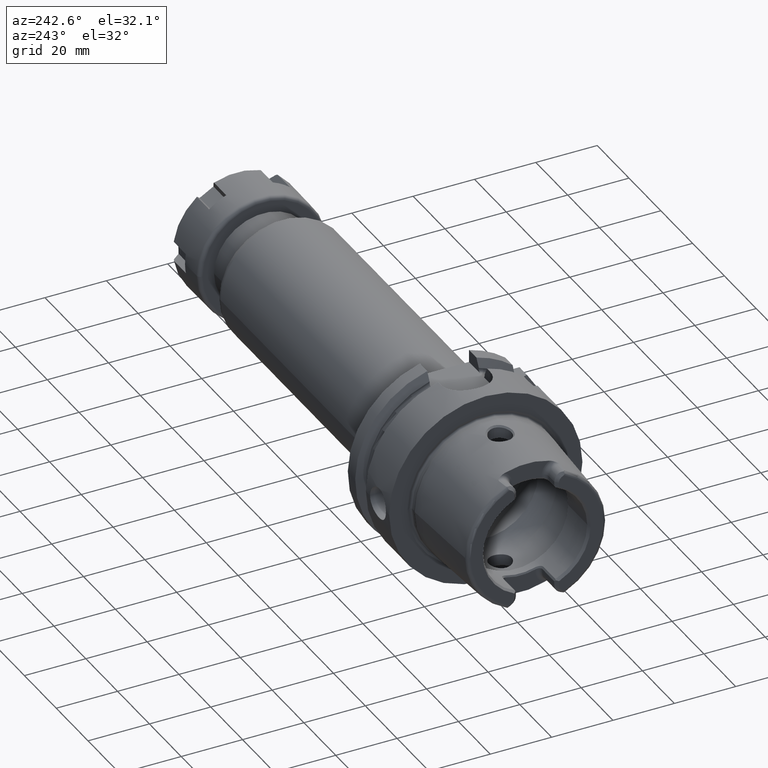
[diagram: clean part render]
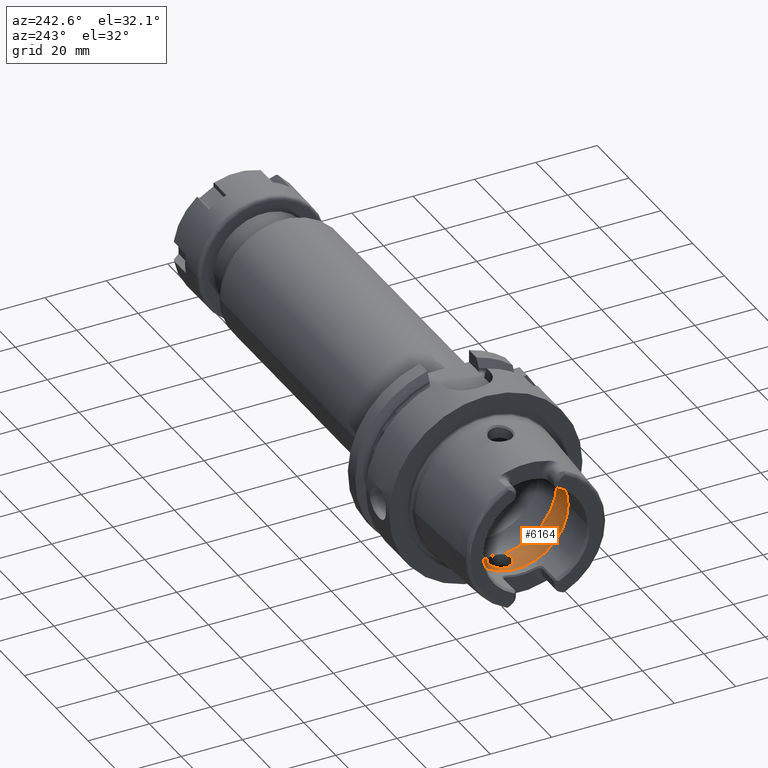
[diagram: same view with one face highlighted and labeled with its STEP entity id]
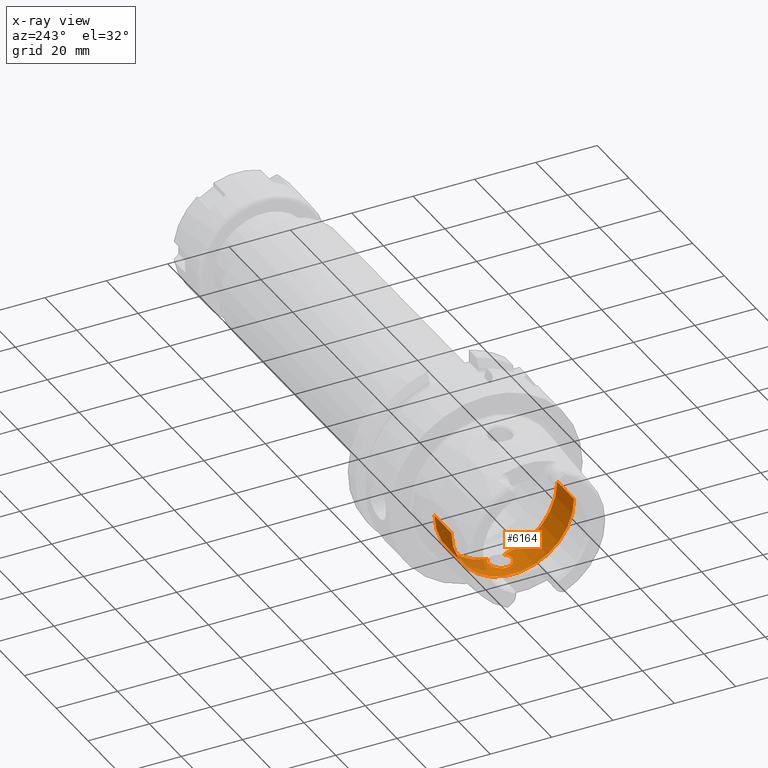
[diagram: x-ray of the same camera — body ghosted, the highlighted face saturated]
A machine part, auxiliary view. The second image highlights one B-rep face of the part: STEP entity #6164.
The next image is the same camera in x-ray: the body ghosted, the highlighted face saturated — about 7% of this face is hidden behind the body in this view.
In plain terms, the highlighted cylindrical surface (partial cylindrical patch) has radius 20 mm, axis along (1, 0, 0).
Its self-contained STEP definition (entity closure, byte-faithful):
#2400=CARTESIAN_POINT('',(-1.275E1,0.E0,-2.E1));
#2401=CARTESIAN_POINT('',(-1.275E1,1.970797777845E-1,-2.E1));
#2402=CARTESIAN_POINT('',(-1.271933909344E1,5.855820587090E-1,
-1.999421722836E1));
#2403=CARTESIAN_POINT('',(-1.258308604776E1,1.156988201512E0,
-1.996912456378E1));
#2404=CARTESIAN_POINT('',(-1.236036877994E1,1.698340885752E0,
-1.993006069771E1));
#2405=CARTESIAN_POINT('',(-1.205588954782E1,2.199795991820E0,
-1.988058916012E1));
#2406=CARTESIAN_POINT('',(-1.167538777807E1,2.649620270025E0,
-1.982521080355E1));
#2407=CARTESIAN_POINT('',(-1.122923157921E1,3.034483606922E0,
-1.976949737947E1));
#2408=CARTESIAN_POINT('',(-1.073042246945E1,3.344039011522E0,
-1.971907966661E1));
#2409=CARTESIAN_POINT('',(-1.018735452757E1,3.573605383178E0,
-1.967844161215E1));
#2410=CARTESIAN_POINT('',(-9.606410769133E0,3.716516435875E0,
-1.965172086194E1));
#2411=CARTESIAN_POINT('',(-9.030535729406E0,3.763361658231E0,
-1.964272645946E1));
#2412=CARTESIAN_POINT('',(-8.506781906634E0,3.728806167728E0,
-1.964936056965E1));
#2413=CARTESIAN_POINT('',(-8.021198772650E0,3.630984566241E0,
-1.966777436361E1));
#2414=CARTESIAN_POINT('',(-7.558768926129E0,3.473542575992E0,
-1.969635625599E1));
#2415=CARTESIAN_POINT('',(-7.115695543339E0,3.254813817759E0,
-1.973391032126E1));
#2416=CARTESIAN_POINT('',(-6.705028812647E0,2.979233365007E0,
-1.977763044789E1));
#2417=CARTESIAN_POINT('',(-6.460595531496E0,2.764184924848E0,
-1.980840609324E1));
#2418=CARTESIAN_POINT('',(-6.344997998398E0,2.648294615690E0,
-1.982388800484E1));
#2420=CARTESIAN_POINT('',(-6.344997998398E0,-2.648294615690E0,
-1.982388800484E1));
#2421=CARTESIAN_POINT('',(-6.462044697935E0,-2.765637761618E0,
-1.980821200720E1));
#2422=CARTESIAN_POINT('',(-6.709671551165E0,-2.983133891878E0,
-1.977705807675E1));
#2423=CARTESIAN_POINT('',(-7.126034905943E0,-3.261089757929E0,
-1.973288133904E1));
#2424=CARTESIAN_POINT('',(-7.575584049692E0,-3.480770468375E0,
-1.969508061270E1));
#2425=CARTESIAN_POINT('',(-8.044905845670E0,-3.637571668188E0,
-1.966655338525E1));
#2426=CARTESIAN_POINT('',(-8.536725270309E0,-3.732857206466E0,
-1.964858692526E1));
#2427=CARTESIAN_POINT('',(-9.064387630539E0,-3.763073563083E0,
-1.964278192788E1));
#2428=CARTESIAN_POINT('',(-9.641487703756E0,-3.710628371547E0,
-1.965284319508E1));
#2429=CARTESIAN_POINT('',(-1.021950864124E1,-3.562603616823E0,
-1.968045141989E1));
#2430=CARTESIAN_POINT('',(-1.075710456701E1,-3.329816746764E0,
-1.972149542356E1));
#2431=CARTESIAN_POINT('',(-1.124928271618E1,-3.019350214938E0,
-1.977181687259E1));
#2432=CARTESIAN_POINT('',(-1.169009647422E1,-2.634399272321E0,
-1.982723525020E1));
#2433=CARTESIAN_POINT('',(-1.206569000544E1,-2.185760381770E0,
-1.988212354227E1));
#2434=CARTESIAN_POINT('',(-1.236610944677E1,-1.686459337541E0,
-1.993104484011E1));
#2435=CARTESIAN_POINT('',(-1.258557429564E1,-1.148507897483E0,
-1.996957873946E1));
#2436=CARTESIAN_POINT('',(-1.271982075329E1,-5.810738531371E-1,
-1.999430846292E1));
#2437=CARTESIAN_POINT('',(-1.275E1,-1.955235226658E-1,-2.E1));
#2438=CARTESIAN_POINT('',(-1.275E1,0.E0,-2.E1));
#2440=CARTESIAN_POINT('',(-6.344997998398E0,0.E0,0.E0));
#2441=DIRECTION('',(-1.E0,0.E0,0.E0));
#2442=DIRECTION('',(0.E0,-1.324147307845E-1,-9.911944002421E-1));
#2443=AXIS2_PLACEMENT_3D('',#2440,#2441,#2442);
#2445=DIRECTION('',(-1.E0,0.E0,0.E0));
#2446=VECTOR('',#2445,1.057256643630E1);
#2447=CARTESIAN_POINT('',(-6.344997998398E0,-2.E1,0.E0));
#2448=LINE('',#2447,#2446);
#2449=DIRECTION('',(-1.E0,0.E0,0.E0));
#2450=VECTOR('',#2449,1.057256643630E1);
#2451=CARTESIAN_POINT('',(-6.344997998398E0,2.E1,0.E0));
#2452=LINE('',#2451,#2450);
#2453=CARTESIAN_POINT('',(-6.344997998398E0,0.E0,0.E0));
#2454=DIRECTION('',(-1.E0,0.E0,0.E0));
#2455=DIRECTION('',(0.E0,1.E0,0.E0));
#2456=AXIS2_PLACEMENT_3D('',#2453,#2454,#2455);
#2458=CARTESIAN_POINT('',(-6.344997998398E0,2.648294615690E0,
-1.982388800484E1));
#2491=CARTESIAN_POINT('',(-6.344997998398E0,-2.648294615690E0,
-1.982388800484E1));
#2674=CARTESIAN_POINT('',(-1.691756443470E1,0.E0,0.E0));
#2675=DIRECTION('',(-1.E0,0.E0,0.E0));
#2676=DIRECTION('',(0.E0,1.E0,0.E0));
#2677=AXIS2_PLACEMENT_3D('',#2674,#2675,#2676);
#2749=CARTESIAN_POINT('',(-6.344997998398E0,2.E1,0.E0));
#2750=VERTEX_POINT('',#2749);
#2751=CARTESIAN_POINT('',(-1.691756443470E1,2.E1,0.E0));
#2752=VERTEX_POINT('',#2751);
#2761=CARTESIAN_POINT('',(-6.344997998398E0,-2.E1,0.E0));
#2762=VERTEX_POINT('',#2761);
#2763=CARTESIAN_POINT('',(-1.691756443470E1,-2.E1,0.E0));
#2764=VERTEX_POINT('',#2763);
#2934=VERTEX_POINT('',#2458);
#2936=VERTEX_POINT('',#2491);
#2937=VERTEX_POINT('',#2400);
#6147=CARTESIAN_POINT('',(-3.41E1,0.E0,0.E0));
#6148=DIRECTION('',(1.E0,0.E0,0.E0));
#6149=DIRECTION('',(0.E0,-1.E0,0.E0));
#6150=AXIS2_PLACEMENT_3D('',#6147,#6148,#6149);
#6151=CYLINDRICAL_SURFACE('',#6150,2.E1);
#6152=ORIENTED_EDGE('',*,*,#6101,.F.);
#6153=ORIENTED_EDGE('',*,*,#5869,.F.);
#6155=ORIENTED_EDGE('',*,*,#6154,.T.);
#6156=ORIENTED_EDGE('',*,*,#6140,.T.);
#6158=ORIENTED_EDGE('',*,*,#6157,.F.);
#6159=ORIENTED_EDGE('',*,*,#6136,.F.);
#6161=ORIENTED_EDGE('',*,*,#6160,.T.);
#6162=EDGE_LOOP('',(#6152,#6153,#6155,#6156,#6158,#6159,#6161));
#6163=FACE_OUTER_BOUND('',#6162,.F.);
#6164=ADVANCED_FACE('',(#6163),#6151,.F.);
#2419=B_SPLINE_CURVE_WITH_KNOTS('',3,(#2400,#2401,#2402,#2403,#2404,#2405,#2406,
#2407,#2408,#2409,#2410,#2411,#2412,#2413,#2414,#2415,#2416,#2417,#2418),
.UNSPECIFIED.,.F.,.F.,(4,1,1,1,1,1,1,1,1,1,1,1,1,1,1,1,4),(0.E0,6.25E-2,1.25E-1,
1.875E-1,2.5E-1,3.125E-1,3.75E-1,4.375E-1,5.E-1,5.625E-1,6.25E-1,6.875E-1,
7.5E-1,8.125E-1,8.75E-1,9.375E-1,1.E0),.UNSPECIFIED.);
#2439=B_SPLINE_CURVE_WITH_KNOTS('',3,(#2420,#2421,#2422,#2423,#2424,#2425,#2426,
#2427,#2428,#2429,#2430,#2431,#2432,#2433,#2434,#2435,#2436,#2437,#2438),
.UNSPECIFIED.,.F.,.F.,(4,1,1,1,1,1,1,1,1,1,1,1,1,1,1,1,4),(0.E0,6.25E-2,1.25E-1,
1.875E-1,2.5E-1,3.125E-1,3.75E-1,4.375E-1,5.E-1,5.625E-1,6.25E-1,6.875E-1,
7.5E-1,8.125E-1,8.75E-1,9.375E-1,1.E0),.UNSPECIFIED.);
#2444=CIRCLE('',#2443,2.E1);
#2457=CIRCLE('',#2456,2.E1);
#2678=CIRCLE('',#2677,2.E1);
#5869=EDGE_CURVE('',#2936,#2937,#2439,.T.);
#6101=EDGE_CURVE('',#2937,#2934,#2419,.T.);
#6136=EDGE_CURVE('',#2750,#2752,#2452,.T.);
#6140=EDGE_CURVE('',#2762,#2764,#2448,.T.);
#6154=EDGE_CURVE('',#2936,#2762,#2444,.T.);
#6157=EDGE_CURVE('',#2752,#2764,#2678,.T.);
#6160=EDGE_CURVE('',#2750,#2934,#2457,.T.);